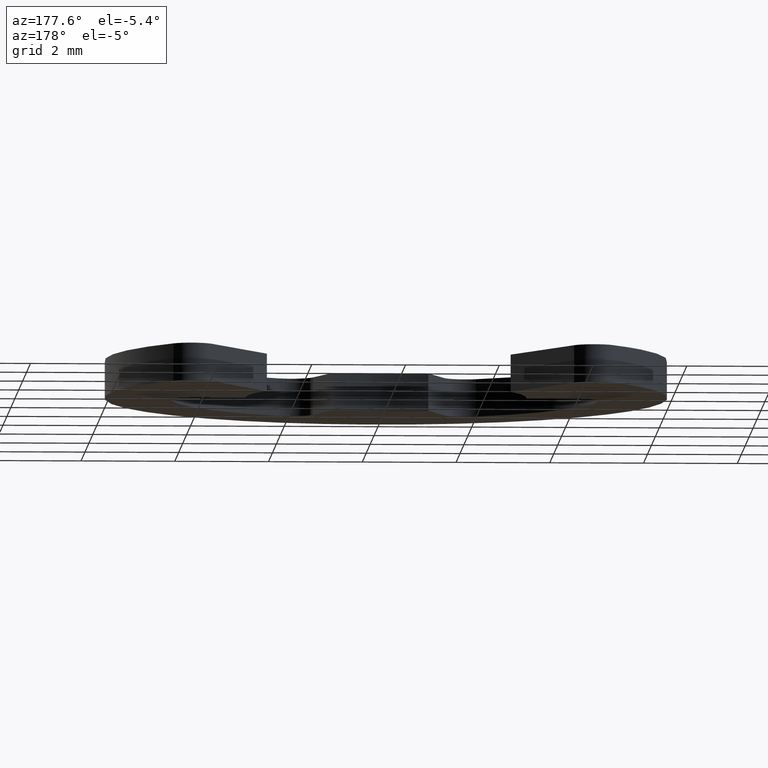
[diagram: clean part render]
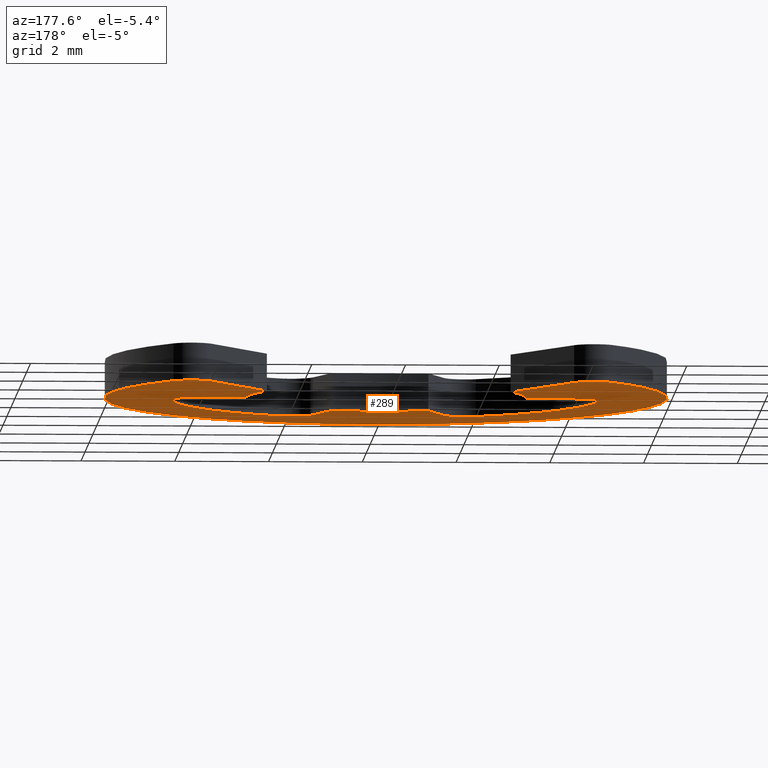
[diagram: same view with one face highlighted and labeled with its STEP entity id]
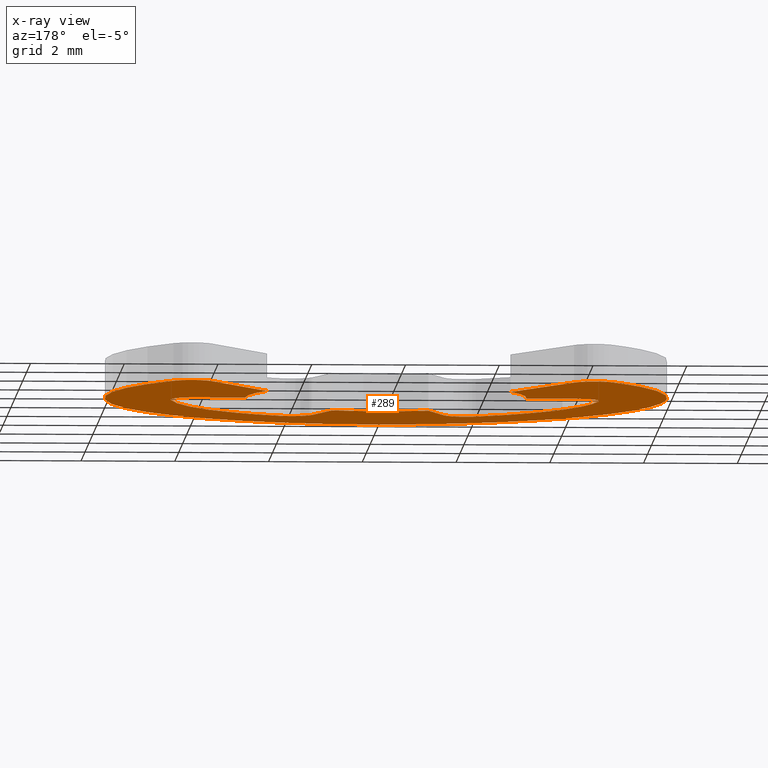
[diagram: x-ray of the same camera — body ghosted, the highlighted face saturated]
A machine part, auxiliary view. The second image highlights one B-rep face of the part: STEP entity #289.
The next image is the same camera in x-ray: the body ghosted, the highlighted face saturated — about 0% of this face is hidden behind the body in this view.
In plain terms, the highlighted face is a freeform B-spline surface patch.
Its self-contained STEP definition (entity closure, byte-faithful):
#44=CARTESIAN_POINT('',(-6.581332474170076,-6.496215426562750,0.0));
#45=CARTESIAN_POINT('',(6.581332683235766,-6.496215426562750,0.0));
#46=CARTESIAN_POINT('',(-6.581332474170076,4.430458852543654,0.0));
#47=CARTESIAN_POINT('',(6.581332683235766,4.430458852543654,0.0));
#48=B_SPLINE_SURFACE_WITH_KNOTS('',1,1,((#44,#46),(#45,#47)),.UNSPECIFIED.,.F.,.F.,.U.,(2,2),(2,2),(0.0,13.162665157405840),(0.0,10.926674279106400),.UNSPECIFIED.);
#49=CARTESIAN_POINT('',(3.863010000000000,3.684273000000000,0.0));
#50=VERTEX_POINT('',#49);
#51=CARTESIAN_POINT('',(4.686570576171150,3.746472505513260,0.0));
#52=VERTEX_POINT('',#51);
#53=CARTESIAN_POINT('',(3.863010000000000,3.684273000000000,0.0));
#54=CARTESIAN_POINT('',(3.995044526100701,3.912964423524880,0.0));
#55=CARTESIAN_POINT('',(4.258364277141856,3.932851677456801,0.0));
#56=CARTESIAN_POINT('',(4.521684028183013,3.952738931388722,0.0));
#57=CARTESIAN_POINT('',(4.686570576171150,3.746472505513260,0.0));
#65=(BOUNDED_CURVE()B_SPLINE_CURVE(2,(#53,#54,#55,#56,#57),.UNSPECIFIED.,.F.,.U.)B_SPLINE_CURVE_WITH_KNOTS((3,2,3),(0.0,0.500000000000000,1.0),.UNSPECIFIED.)CURVE()GEOMETRIC_REPRESENTATION_ITEM()RATIONAL_B_SPLINE_CURVE((1.0,0.884252020448958,1.0,0.884252020448958,1.0))REPRESENTATION_ITEM(''));
#66=EDGE_CURVE('',#50,#52,#65,.T.);
#67=ORIENTED_EDGE('',*,*,#66,.T.);
#68=CARTESIAN_POINT('',(-4.686575545676350,3.746466289007340,0.0));
#69=VERTEX_POINT('',#68);
#70=CARTESIAN_POINT('',(4.686570576171150,3.746472505513261,0.0));
#71=CARTESIAN_POINT('',(8.165531267817840,-0.605459822599134,0.0));
#72=CARTESIAN_POINT('',(4.082768349135098,-4.396703606942442,0.0));
#73=CARTESIAN_POINT('',(0.000005430452355,-8.187947391285750,0.0));
#74=CARTESIAN_POINT('',(-4.082762517122990,-4.396709022527594,0.0));
#75=CARTESIAN_POINT('',(-8.165530464698330,-0.605470653769442,0.0));
#76=CARTESIAN_POINT('',(-4.686575545676352,3.746466289007337,0.0));
#84=(BOUNDED_CURVE()B_SPLINE_CURVE(2,(#70,#71,#72,#73,#74,#75,#76),.UNSPECIFIED.,.F.,.U.)B_SPLINE_CURVE_WITH_KNOTS((3,2,2,3),(0.0,0.333333333333333,0.666666666666667,1.0),.UNSPECIFIED.)CURVE()GEOMETRIC_REPRESENTATION_ITEM()RATIONAL_B_SPLINE_CURVE((1.0,0.732784385789331,1.0,0.732784385789331,1.0,0.732784385789331,1.0))REPRESENTATION_ITEM(''));
#85=EDGE_CURVE('',#52,#69,#84,.T.);
#86=ORIENTED_EDGE('',*,*,#85,.T.);
#87=CARTESIAN_POINT('',(-3.863011481367470,3.684265317414915,0.0));
#88=VERTEX_POINT('',#87);
#89=CARTESIAN_POINT('',(-4.686575545676350,3.746466289007340,0.0));
#90=CARTESIAN_POINT('',(-4.521688937545055,3.952732709392030,0.0));
#91=CARTESIAN_POINT('',(-4.258368013302476,3.932845010295169,0.0));
#92=CARTESIAN_POINT('',(-3.995047089059899,3.912957311198309,0.0));
#93=CARTESIAN_POINT('',(-3.863011481367468,3.684265317414917,0.0));
#101=(BOUNDED_CURVE()B_SPLINE_CURVE(2,(#89,#90,#91,#92,#93),.UNSPECIFIED.,.F.,.U.)B_SPLINE_CURVE_WITH_KNOTS((3,2,3),(0.0,0.500000000000000,1.0),.UNSPECIFIED.)CURVE()GEOMETRIC_REPRESENTATION_ITEM()RATIONAL_B_SPLINE_CURVE((1.0,0.884251858320853,1.0,0.884251858320853,1.0))REPRESENTATION_ITEM(''));
#102=EDGE_CURVE('',#69,#88,#101,.T.);
#103=ORIENTED_EDGE('',*,*,#102,.T.);
#104=CARTESIAN_POINT('',(-2.599997000000000,1.496666000000000,0.0));
#105=VERTEX_POINT('',#104);
#106=CARTESIAN_POINT('',(-3.863011481367470,3.684265317414915,0.0));
#107=CARTESIAN_POINT('',(-2.599997000000000,1.496666000000000,0.0));
#108=QUASI_UNIFORM_CURVE('',1,(#106,#107),.UNSPECIFIED.,.F.,.U.);
#109=EDGE_CURVE('',#88,#105,#108,.T.);
#110=ORIENTED_EDGE('',*,*,#109,.T.);
#111=CARTESIAN_POINT('',(-2.999999999999780,-0.000001151917306,0.0));
#112=VERTEX_POINT('',#111);
#113=CARTESIAN_POINT('',(-2.999999999999780,-0.000001151917306,0.0));
#114=CARTESIAN_POINT('',(-2.999999839543698,0.801785137004089,0.0));
#115=CARTESIAN_POINT('',(-2.599997000000000,1.496666000000000,0.0));
#123=(BOUNDED_CURVE()B_SPLINE_CURVE(2,(#113,#114,#115),.UNSPECIFIED.,.F.,.U.)CURVE()GEOMETRIC_REPRESENTATION_ITEM()QUASI_UNIFORM_CURVE()RATIONAL_B_SPLINE_CURVE((1.0,0.966091555526800,1.0))REPRESENTATION_ITEM(''));
#124=EDGE_CURVE('',#112,#105,#123,.T.);
#125=ORIENTED_EDGE('',*,*,#124,.F.);
#126=CARTESIAN_POINT('',(-4.069397000000000,0.0,0.0));
#127=VERTEX_POINT('',#126);
#128=CARTESIAN_POINT('',(-2.999999999999780,-0.000001151917306,0.0));
#129=CARTESIAN_POINT('',(-4.069397000000000,0.0,0.0));
#130=QUASI_UNIFORM_CURVE('',1,(#128,#129),.UNSPECIFIED.,.F.,.U.);
#131=EDGE_CURVE('',#112,#127,#130,.T.);
#132=ORIENTED_EDGE('',*,*,#131,.T.);
#133=CARTESIAN_POINT('',(-4.565665037338840,-0.560975692827991,0.0));
#134=VERTEX_POINT('',#133);
#135=CARTESIAN_POINT('',(-4.565665037338842,-0.560975692827991,0.0));
#136=CARTESIAN_POINT('',(-4.593134099878816,-0.337410906238256,0.0));
#137=CARTESIAN_POINT('',(-4.443888552918084,-0.168705453119128,0.0));
#138=CARTESIAN_POINT('',(-4.294643005957350,0.0,0.0));
#139=CARTESIAN_POINT('',(-4.069397000000000,0.0,0.0));
#147=(BOUNDED_CURVE()B_SPLINE_CURVE(2,(#135,#136,#137,#138,#139),.UNSPECIFIED.,.F.,.U.)B_SPLINE_CURVE_WITH_KNOTS((3,2,3),(0.0,0.500000000000000,1.0),.UNSPECIFIED.)CURVE()GEOMETRIC_REPRESENTATION_ITEM()RATIONAL_B_SPLINE_CURVE((1.0,0.911753556001221,1.0,0.911753556001221,1.0))REPRESENTATION_ITEM(''));
#148=EDGE_CURVE('',#134,#127,#147,.T.);
#149=ORIENTED_EDGE('',*,*,#148,.F.);
#150=CARTESIAN_POINT('',(-2.088696213768935,-4.098456798184810,0.0));
#151=VERTEX_POINT('',#150);
#152=CARTESIAN_POINT('',(-2.088696213768935,-4.098456798184815,0.0));
#153=CARTESIAN_POINT('',(-4.267449413650987,-2.988098977322558,0.0));
#154=CARTESIAN_POINT('',(-4.565665037338840,-0.560975692827991,0.0));
#162=(BOUNDED_CURVE()B_SPLINE_CURVE(2,(#152,#153,#154),.UNSPECIFIED.,.F.,.U.)CURVE()GEOMETRIC_REPRESENTATION_ITEM()QUASI_UNIFORM_CURVE()RATIONAL_B_SPLINE_CURVE((1.0,0.882986431893304,1.0))REPRESENTATION_ITEM(''));
#163=EDGE_CURVE('',#151,#134,#162,.T.);
#164=ORIENTED_EDGE('',*,*,#163,.F.);
#165=CARTESIAN_POINT('',(-1.391817958012584,-3.823983127035450,0.0));
#166=VERTEX_POINT('',#165);
#167=CARTESIAN_POINT('',(-1.391817958012584,-3.823983127035450,0.0));
#168=CARTESIAN_POINT('',(-1.468856879404417,-4.035644854333030,0.0));
#169=CARTESIAN_POINT('',(-1.678433037067881,-4.118188881075313,0.0));
#170=CARTESIAN_POINT('',(-1.888009194731345,-4.200732907817598,0.0));
#171=CARTESIAN_POINT('',(-2.088696213768936,-4.098456798184811,0.0));
#179=(BOUNDED_CURVE()B_SPLINE_CURVE(2,(#167,#168,#169,#170,#171),.UNSPECIFIED.,.F.,.U.)B_SPLINE_CURVE_WITH_KNOTS((3,2,3),(0.0,0.500000000000000,1.0),.UNSPECIFIED.)CURVE()GEOMETRIC_REPRESENTATION_ITEM()RATIONAL_B_SPLINE_CURVE((1.0,0.911753678768537,1.0,0.911753678768537,1.0))REPRESENTATION_ITEM(''));
#180=EDGE_CURVE('',#166,#151,#179,.T.);
#181=ORIENTED_EDGE('',*,*,#180,.F.);
#182=CARTESIAN_POINT('',(-1.026060000000012,-2.819076000000000,0.0));
#183=VERTEX_POINT('',#182);
#184=CARTESIAN_POINT('',(-1.391817958012584,-3.823983127035450,0.0));
#185=CARTESIAN_POINT('',(-1.026060000000012,-2.819076000000000,0.0));
#186=QUASI_UNIFORM_CURVE('',1,(#184,#185),.UNSPECIFIED.,.F.,.U.);
#187=EDGE_CURVE('',#166,#183,#186,.T.);
#188=ORIENTED_EDGE('',*,*,#187,.T.);
#189=CARTESIAN_POINT('',(1.026058412686930,-2.819078596590450,0.0));
#190=VERTEX_POINT('',#189);
#191=CARTESIAN_POINT('',(1.026058412686930,-2.819078596590450,0.0));
#192=CARTESIAN_POINT('',(-0.000000941773228,-3.192532055437769,0.0));
#193=CARTESIAN_POINT('',(-1.026060000000012,-2.819076000000000,0.0));
#201=(BOUNDED_CURVE()B_SPLINE_CURVE(2,(#191,#192,#193),.UNSPECIFIED.,.F.,.U.)CURVE()GEOMETRIC_REPRESENTATION_ITEM()QUASI_UNIFORM_CURVE()RATIONAL_B_SPLINE_CURVE((1.0,0.939692729881005,1.0))REPRESENTATION_ITEM(''));
#202=EDGE_CURVE('',#190,#183,#201,.T.);
#203=ORIENTED_EDGE('',*,*,#202,.F.);
#204=CARTESIAN_POINT('',(1.391815000000000,-3.823982000000000,0.0));
#205=VERTEX_POINT('',#204);
#206=CARTESIAN_POINT('',(1.026058412686930,-2.819078596590450,0.0));
#207=CARTESIAN_POINT('',(1.391815000000000,-3.823982000000000,0.0));
#208=QUASI_UNIFORM_CURVE('',1,(#206,#207),.UNSPECIFIED.,.F.,.U.);
#209=EDGE_CURVE('',#190,#205,#208,.T.);
#210=ORIENTED_EDGE('',*,*,#209,.T.);
#211=CARTESIAN_POINT('',(2.088695450060575,-4.098452796061555,0.0));
#212=VERTEX_POINT('',#211);
#213=CARTESIAN_POINT('',(2.088695450060575,-4.098452796061555,0.0));
#214=CARTESIAN_POINT('',(1.888008509862501,-4.200729531546816,0.0));
#215=CARTESIAN_POINT('',(1.678431727553087,-4.118186383333256,0.0));
#216=CARTESIAN_POINT('',(1.468854945243672,-4.035643235119693,0.0));
#217=CARTESIAN_POINT('',(1.391815000000000,-3.823982000000000,0.0));
#225=(BOUNDED_CURVE()B_SPLINE_CURVE(2,(#213,#214,#215,#216,#217),.UNSPECIFIED.,.F.,.U.)B_SPLINE_CURVE_WITH_KNOTS((3,2,3),(0.0,0.500000000000000,1.0),.UNSPECIFIED.)CURVE()GEOMETRIC_REPRESENTATION_ITEM()RATIONAL_B_SPLINE_CURVE((1.0,0.911753755466187,1.0,0.911753755466187,1.0))REPRESENTATION_ITEM(''));
#226=EDGE_CURVE('',#212,#205,#225,.T.);
#227=ORIENTED_EDGE('',*,*,#226,.F.);
#228=CARTESIAN_POINT('',(4.565665992471750,-0.560975975588001,0.0));
#229=VERTEX_POINT('',#228);
#230=CARTESIAN_POINT('',(4.565665992471750,-0.560975975588001,0.0));
#231=CARTESIAN_POINT('',(4.267448520479672,-2.988096558573858,0.0));
#232=CARTESIAN_POINT('',(2.088695450060575,-4.098452796061555,0.0));
#240=(BOUNDED_CURVE()B_SPLINE_CURVE(2,(#230,#231,#232),.UNSPECIFIED.,.F.,.U.)CURVE()GEOMETRIC_REPRESENTATION_ITEM()QUASI_UNIFORM_CURVE()RATIONAL_B_SPLINE_CURVE((1.0,0.882986498269924,1.0))REPRESENTATION_ITEM(''));
#241=EDGE_CURVE('',#229,#212,#240,.T.);
#242=ORIENTED_EDGE('',*,*,#241,.F.);
#243=CARTESIAN_POINT('',(4.069397157079631,-2.464695E-014,0.0));
#244=VERTEX_POINT('',#243);
#245=CARTESIAN_POINT('',(4.069397157079631,-2.461139E-014,0.0));
#246=CARTESIAN_POINT('',(4.294643165169120,-0.000000070763144,0.0));
#247=CARTESIAN_POINT('',(4.443888659346118,-0.168705573424196,0.0));
#248=CARTESIAN_POINT('',(4.593134153523118,-0.337411076085247,0.0));
#249=CARTESIAN_POINT('',(4.565665992471750,-0.560975975588001,0.0));
#257=(BOUNDED_CURVE()B_SPLINE_CURVE(2,(#245,#246,#247,#248,#249),.UNSPECIFIED.,.F.,.U.)B_SPLINE_CURVE_WITH_KNOTS((3,2,3),(0.0,0.500000000000000,1.0),.UNSPECIFIED.)CURVE()GEOMETRIC_REPRESENTATION_ITEM()RATIONAL_B_SPLINE_CURVE((1.0,0.911753554545202,1.0,0.911753554545202,1.0))REPRESENTATION_ITEM(''));
#258=EDGE_CURVE('',#244,#229,#257,.T.);
#259=ORIENTED_EDGE('',*,*,#258,.F.);
#260=CARTESIAN_POINT('',(3.0,0.0,0.0));
#261=VERTEX_POINT('',#260);
#262=CARTESIAN_POINT('',(4.069397157079631,-2.464695E-014,0.0));
#263=CARTESIAN_POINT('',(3.0,0.0,0.0));
#264=QUASI_UNIFORM_CURVE('',1,(#262,#263),.UNSPECIFIED.,.F.,.U.);
#265=EDGE_CURVE('',#244,#261,#264,.T.);
#266=ORIENTED_EDGE('',*,*,#265,.T.);
#267=CARTESIAN_POINT('',(2.599998350847290,1.496665819610834,0.0));
#268=VERTEX_POINT('',#267);
#269=CARTESIAN_POINT('',(2.599998350847290,1.496665819610836,0.0));
#270=CARTESIAN_POINT('',(3.000000000000000,0.801785496624863,0.0));
#271=CARTESIAN_POINT('',(3.0,0.0,0.0));
#279=(BOUNDED_CURVE()B_SPLINE_CURVE(2,(#269,#270,#271),.UNSPECIFIED.,.F.,.U.)CURVE()GEOMETRIC_REPRESENTATION_ITEM()QUASI_UNIFORM_CURVE()RATIONAL_B_SPLINE_CURVE((1.0,0.966091640826350,1.0))REPRESENTATION_ITEM(''));
#280=EDGE_CURVE('',#268,#261,#279,.T.);
#281=ORIENTED_EDGE('',*,*,#280,.F.);
#282=CARTESIAN_POINT('',(2.599998350847290,1.496665819610834,0.0));
#283=CARTESIAN_POINT('',(3.863010000000000,3.684273000000000,0.0));
#284=QUASI_UNIFORM_CURVE('',1,(#282,#283),.UNSPECIFIED.,.F.,.U.);
#285=EDGE_CURVE('',#268,#50,#284,.T.);
#286=ORIENTED_EDGE('',*,*,#285,.T.);
#287=EDGE_LOOP('',(#67,#86,#103,#110,#125,#132,#149,#164,#181,#188,#203,#210,#227,#242,#259,#266,#281,#286));
#288=FACE_OUTER_BOUND('',#287,.T.);
#289=ADVANCED_FACE('',(#288),#48,.F.);